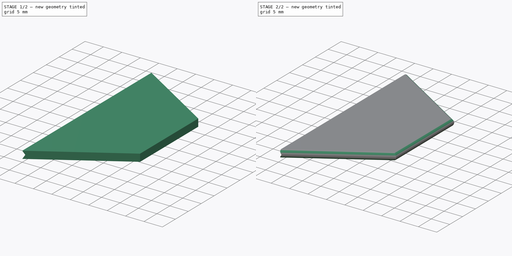
[diagram: build sequence overview — one tinted view per stage of 2, left to right]
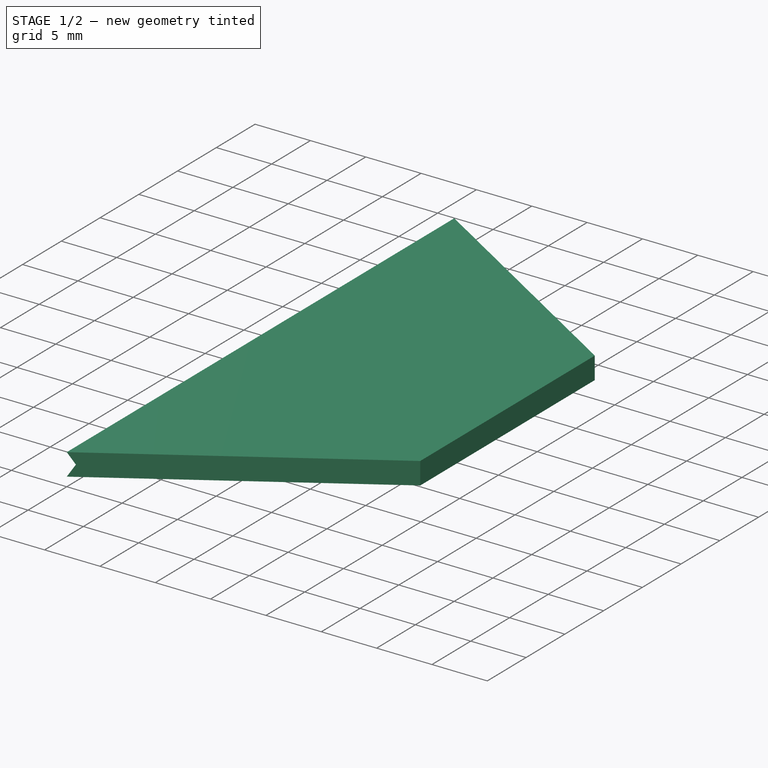
[diagram: stage 1 of 2 — iso view after this stage's code; geometry added in this stage tinted green]
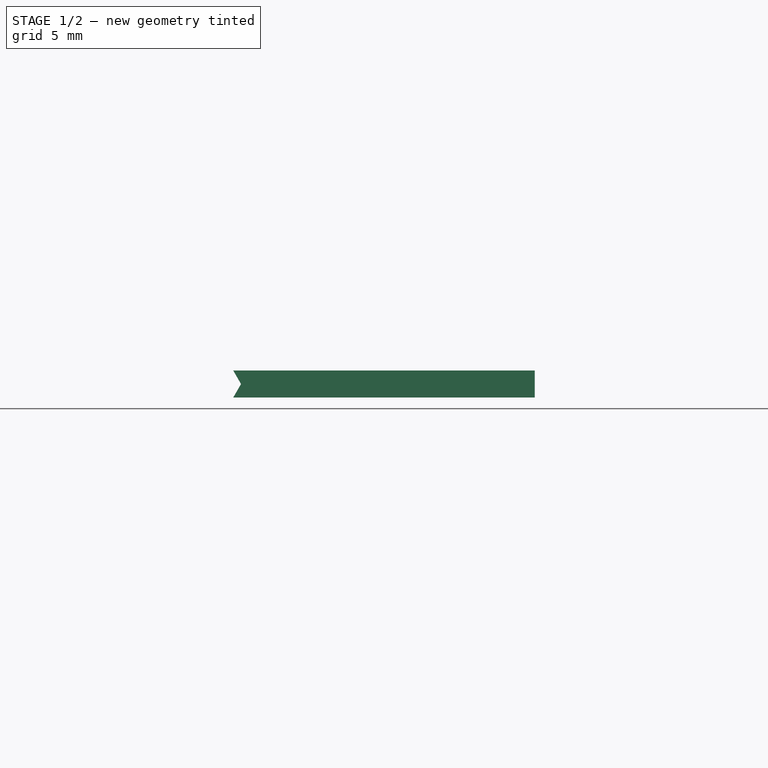
[diagram: stage 1 of 2 — front view after this stage's code; geometry added in this stage tinted green]
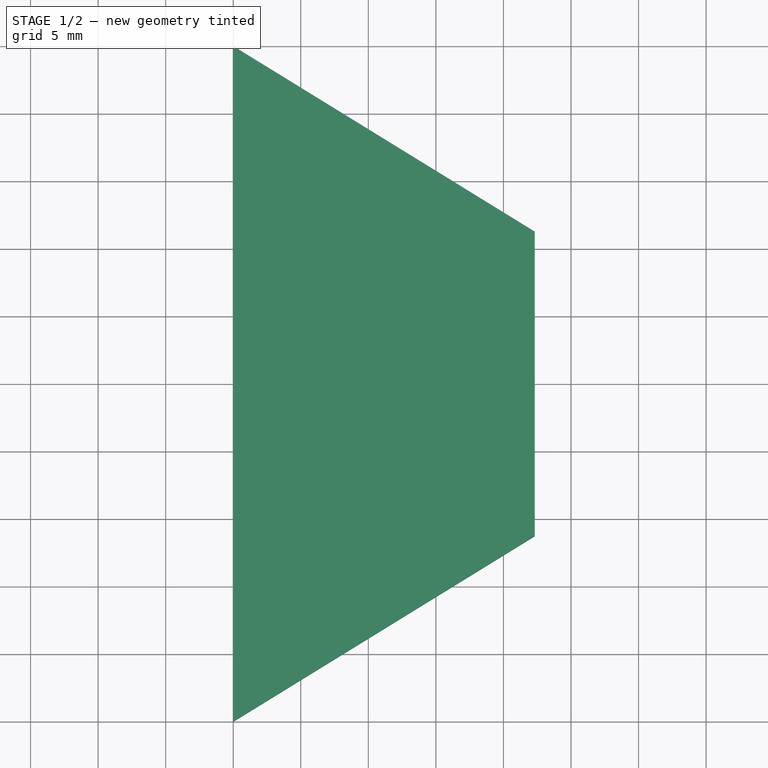
[diagram: stage 1 of 2 — top view after this stage's code; geometry added in this stage tinted green]
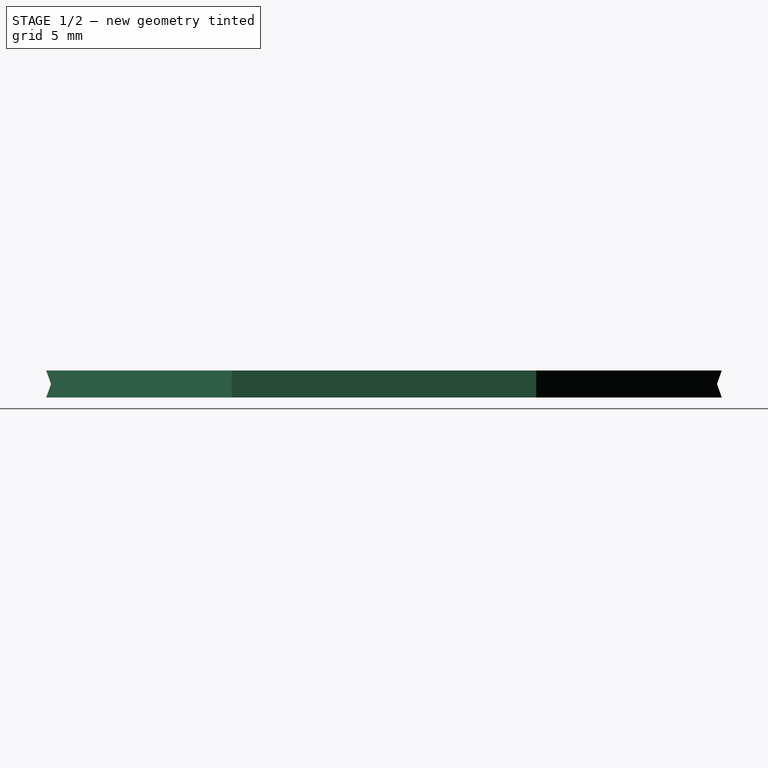
[diagram: stage 1 of 2 — right view after this stage's code; geometry added in this stage tinted green]
FCSTD DOCUMENT  (FreeCAD 0.21R33771 (Git))
Label: ND_proto_fin_2mm
License: All rights reserved
LicenseURL: http://en.wikipedia.org/wiki/All_rights_reserved
objects: Sketcher::SketchObject×2, PartDesign::Pad×1, PartDesign::Pocket×1, PartDesign::Fillet×1, PartDesign::Body×1
note: 9 computed .brp shape members not serialized (recipe doc carries the construction recipe); baked Part::Feature solids carry a one-line shape summary decoded from their .brp

FEATURE [Sketcher::SketchObject] Sketch
  FullyConstrained = false
  MapMode = 5
  Support = -> [XY_Plane]
  sketch-geometry (5):
    g0: LineSegment StartX=0 StartY=-25 StartZ=0 EndX=22.3185 EndY=-11.2644 EndZ=0
    g1: LineSegment StartX=22.3185 StartY=-11.2644 StartZ=0 EndX=22.3185 EndY=11.2644 EndZ=0
    g2: LineSegment StartX=22.3185 StartY=11.2644 StartZ=0 EndX=0 EndY=25 EndZ=0
    g3: Circle CenterX=0 CenterY=0 CenterZ=0 NormalX=0 NormalY=0 NormalZ=1 AngleXU=0 Radius=25
    g4: LineSegment StartX=0 StartY=25 StartZ=0 EndX=0 EndY=-25 EndZ=0
  constraints (12):
    c: Coincident(g0,g1)
    c: Coincident(g1,g2)
    c: PointOnObject(g0,g3)
    c: PointOnObject(g0,g3)
    c: PointOnObject(g1,g3)
    c: PointOnObject(g2,g3)
    c: Coincident(g3,g-1)
    c: PointOnObject(g2,g-2)
    c: DistanceY(g0,g2) = 50
    c: Coincident(g4,g2)
    c: Coincident(g4,g0)
    c: Vertical(g4)
FEATURE [PartDesign::Pad] Pad
  Direction = (0,0,1)
  Length = 2
  Length2 = 10
  Profile = -> Sketch
  ReferenceAxis = -> Sketch [N_Axis]
  Type = 0
FEATURE [Sketcher::SketchObject] Sketch001
  ExternalGeometry = -> [Pad]
  FullyConstrained = false
  MapMode = 5
  Placement = pos=(0,0,0) rot=(1,0,0;1.5708rad)
  Support = -> [XZ_Plane]
  sketch-geometry (5):
    g0: LineSegment StartX=0 StartY=2 StartZ=0 EndX=0.57735 EndY=1 EndZ=0
    g1: LineSegment StartX=0.57735 StartY=1 StartZ=0 EndX=0 EndY=0 EndZ=0
    g2: LineSegment StartX=0 StartY=2 StartZ=0 EndX=-0.914664 EndY=1.82152 EndZ=0
    g3: LineSegment StartX=-0.914664 StartY=1.82152 StartZ=0 EndX=-0.786644 EndY=0.221257 EndZ=0
    g4: LineSegment StartX=-0.786644 StartY=0.221257 StartZ=0 EndX=0 EndY=0 EndZ=0
  constraints (9):
    c: Coincident(g-3,g0)
    c: Coincident(g0,g1)
    c: Coincident(g1,g-1)
    c: DistanceY(g1,g0) = 1
    c: Angle(g0,g1) = 2.0944
    c: Coincident(g0,g2)
    c: Coincident(g2,g3)
    c: Coincident(g3,g4)
    c: Coincident(g4,g1)
FEATURE [PartDesign::Pocket] Pocket
  BaseFeature = -> Pad
  Direction = (0,1,2e-16)
  Length = 25
  Length2 = 25
  Profile = -> Sketch001
  ReferenceAxis = -> Sketch001 [N_Axis]
  Type = 4
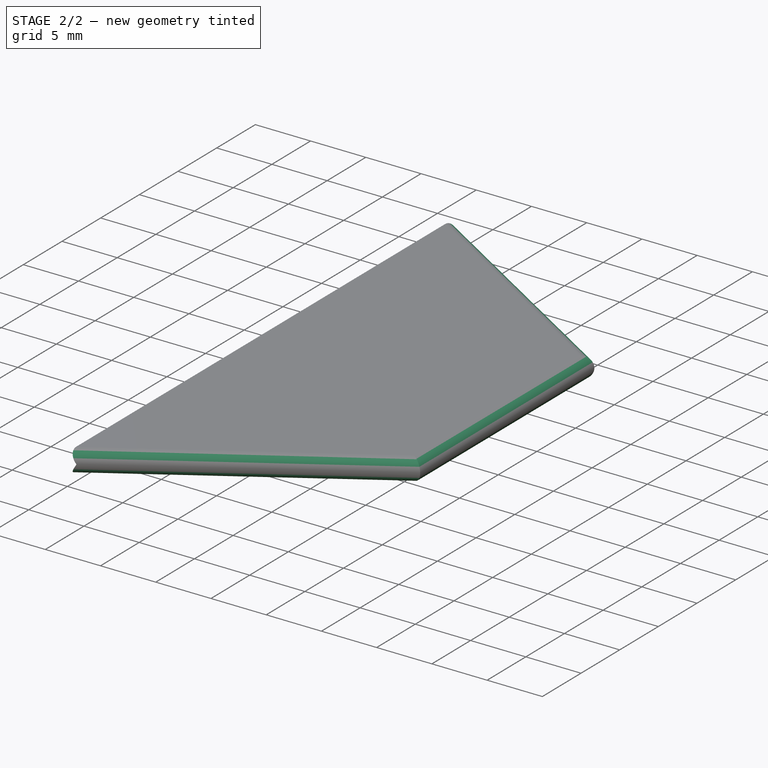
[diagram: stage 2 of 2 — iso view after this stage's code; geometry added in this stage tinted green]
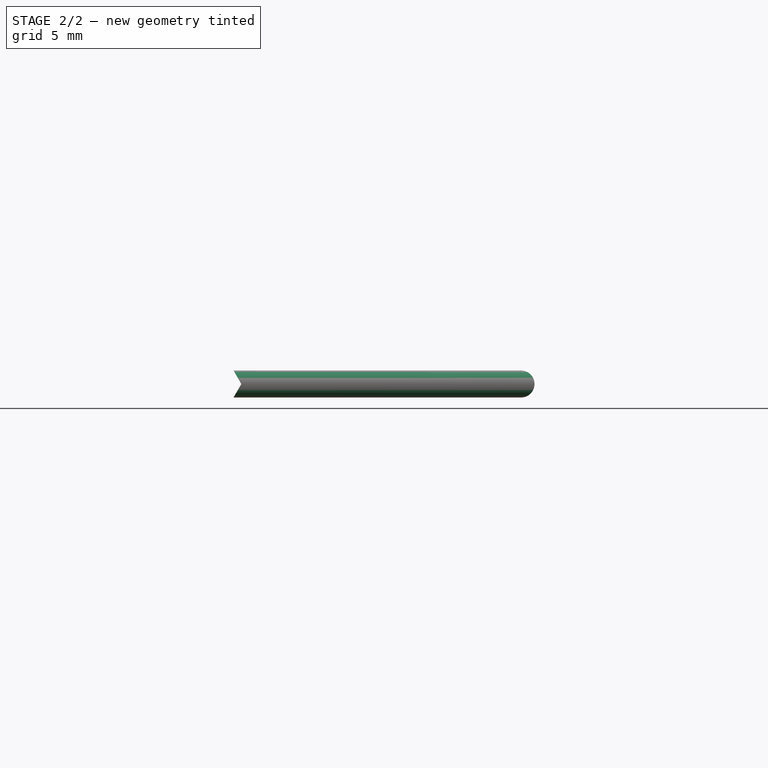
[diagram: stage 2 of 2 — front view after this stage's code; geometry added in this stage tinted green]
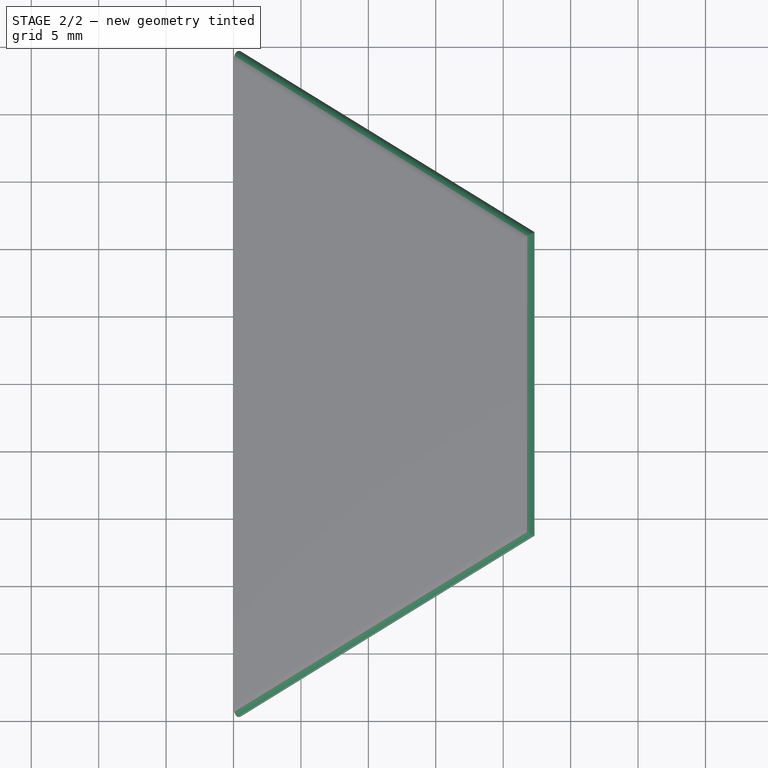
[diagram: stage 2 of 2 — top view after this stage's code; geometry added in this stage tinted green]
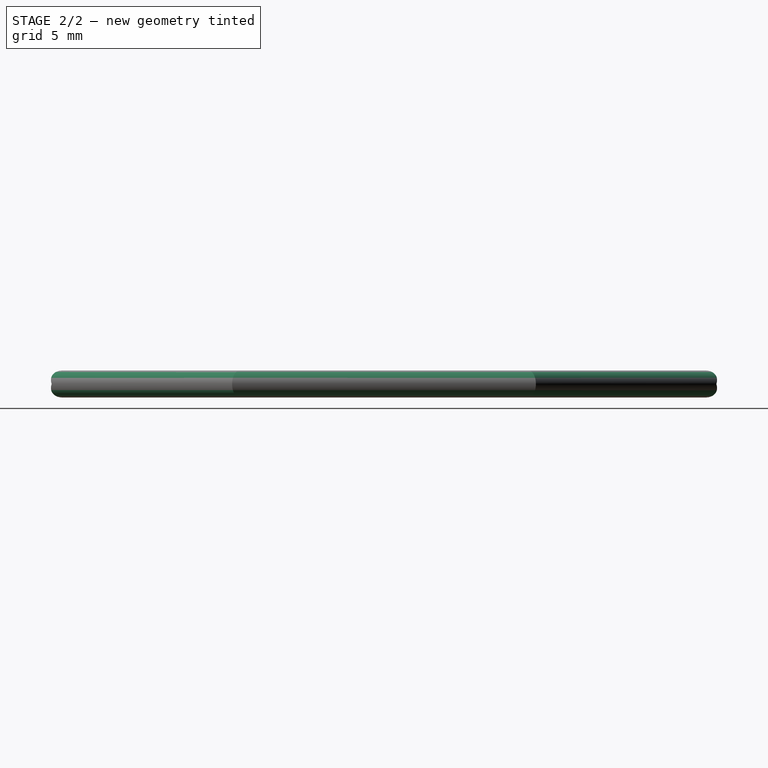
[diagram: stage 2 of 2 — right view after this stage's code; geometry added in this stage tinted green]
FEATURE [PartDesign::Fillet] Fillet
  Base = -> Pocket [Edge7,Edge11,Edge6,Edge1,Edge10,Edge3]
  BaseFeature = -> Pocket
  Radius = 0.99
  SupportTransform = false
  UseAllEdges = false
FEATURE [PartDesign::Body] Body
  Group = -> [Sketch,Pad,Sketch001,Pocket,Fillet]
  Origin = -> Origin
  Tip = -> Fillet
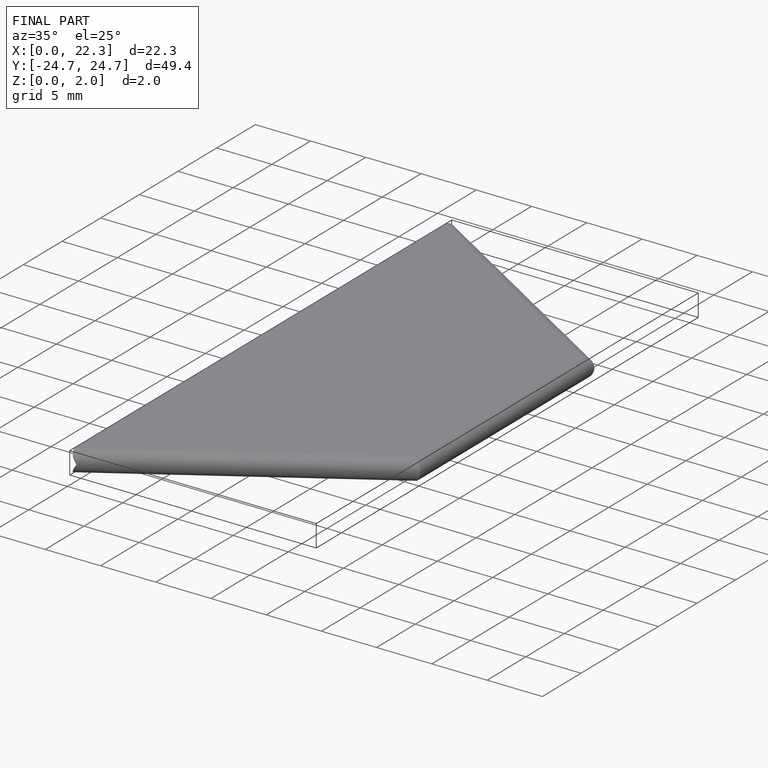
[diagram: finished part — iso view with bounding-box wireframe]
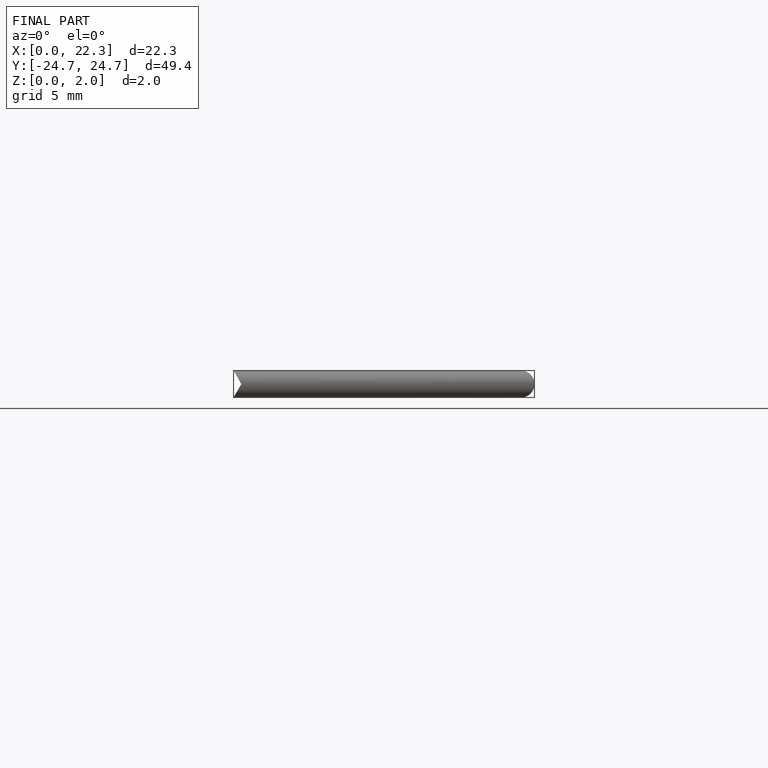
[diagram: finished part — front view with bounding-box wireframe]
